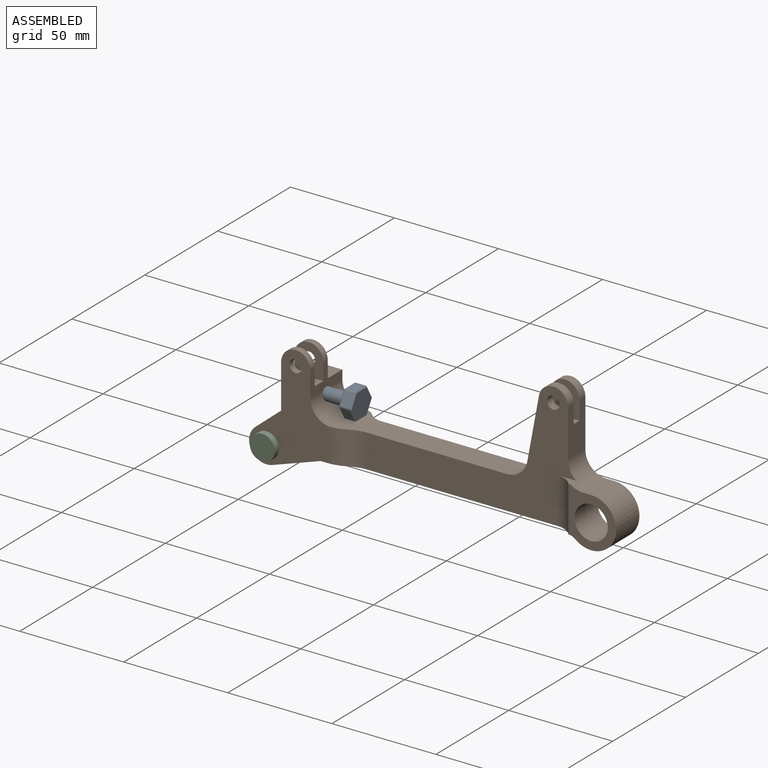
[diagram: assembled view]
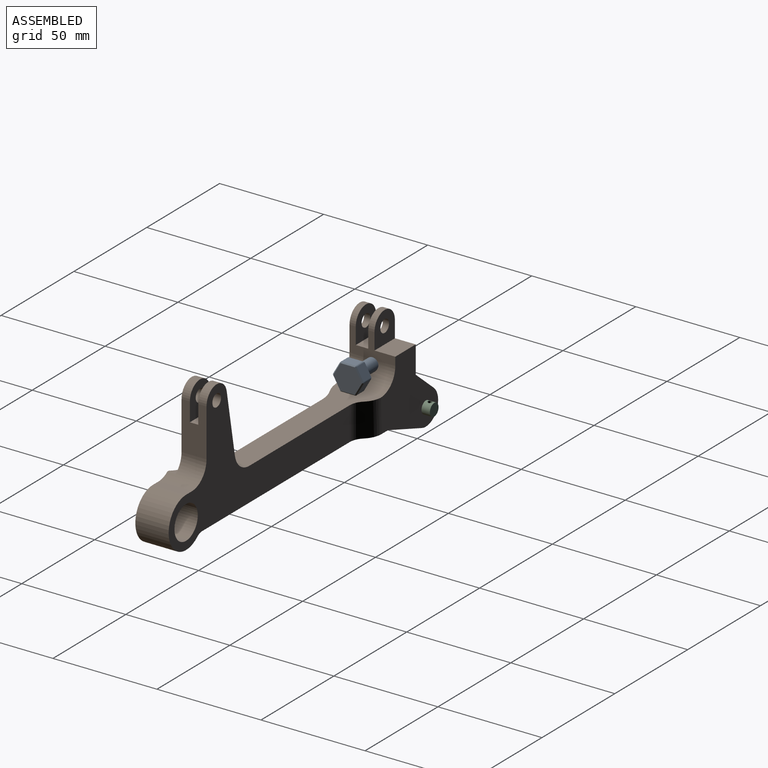
[diagram: assembled view, second angle]
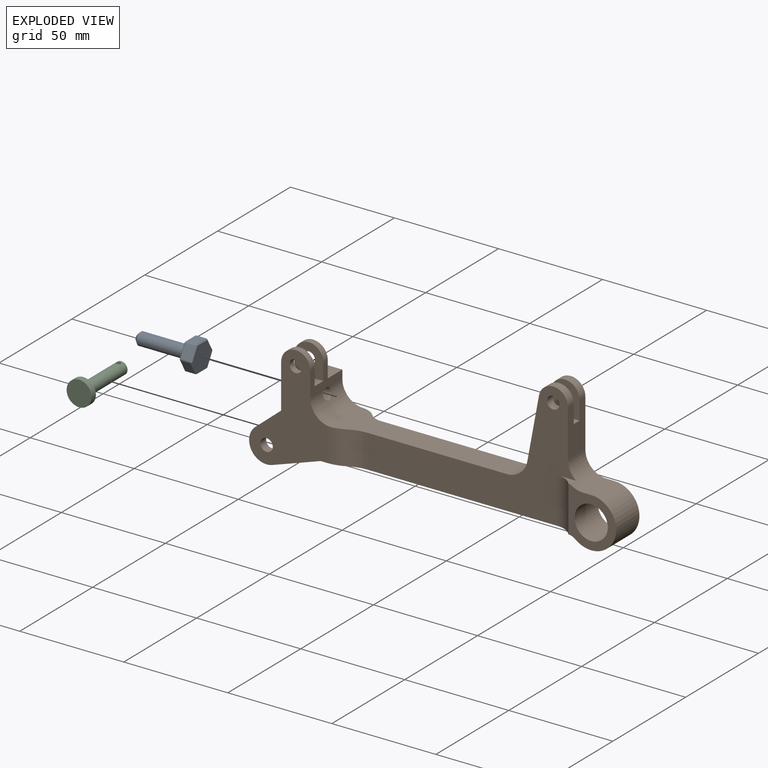
[diagram: exploded view]
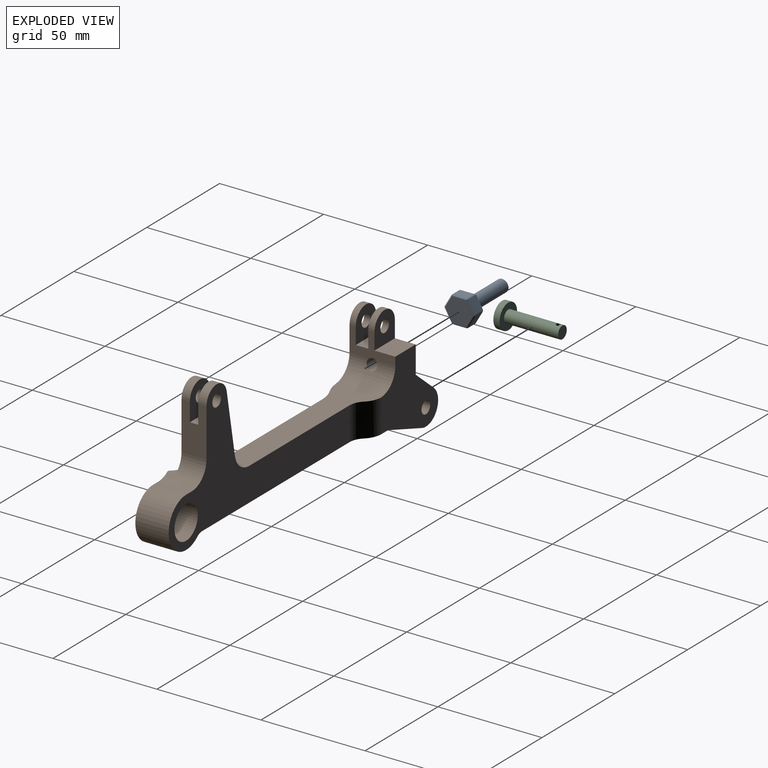
[diagram: exploded view, second angle]
ASSEMBLY  parts=3 mates=2
PART A: 28 faces, bbox 13x31x14.7 mm
  f0: plane 6.35x5mm, normal (-1,0,0), area 31.8mm2, adj f13,f15,f23,f24
  f1: plane 5.5x5mm, normal (-0.5,0,-0.87), area 31.8mm2, adj f11,f17,f22,f23
  f2: plane 5.5x5mm, normal (0.5,0,-0.87), area 31.8mm2, adj f9,f18,f21,f22
  f3: plane 6.35x5mm, normal (1,0,0), area 31.8mm2, adj f8,f16,f20,f21
  f4: plane 5.5x5.5mm, normal (0.5,0,0.87), area 34.9mm2, adj f7,f10,f19,f20
  f5: plane 5.5x5mm, normal (-0.5,0,0.87), area 31.8mm2, adj f12,f14,f19,f24
  f6: plane 13.86x12mm, normal (0,1,0), area 124.7mm2, adj f8,f9,f10,f11,f12,f13
  f7: plane 14.15x12mm, normal (0,-1,0), area 99.8mm2, adj f4,f14,f15,f16,f17,f18,f25
  f8: plane 7.35x0.5mm, normal (0.71,0.71,0), area 5mm2, adj f3,f6,f9,f10,f20,f21
  f9: plane 6.37x3.89mm, normal (0.35,0.71,-0.61), area 5mm2, adj f2,f6,f8,f11,f21,f22
  f10: plane 6.37x3.89mm, normal (0.35,0.71,0.61), area 5mm2, adj f4,f6,f8,f12,f19,f20
  f11: plane 6.37x3.89mm, normal (-0.35,0.71,-0.61), area 5mm2, adj f1,f6,f9,f13,f22,f23
  f12: plane 6.37x3.89mm, normal (-0.35,0.71,0.61), area 5mm2, adj f5,f6,f10,f13,f19,f24
  f13: plane 7.35x0.5mm, normal (-0.71,0.71,0), area 5mm2, adj f0,f6,f11,f12,f23,f24
  f14: plane 6.87x3.89mm, normal (-0.35,-0.71,0.61), area 5.2mm2, adj f5,f7,f15,f19,f24
  f15: plane 7.35x0.5mm, normal (-0.71,-0.71,0), area 5mm2, adj f0,f7,f14,f17,f23,f24
  f16: plane 7.72x0.5mm, normal (0.71,-0.71,0), area 5.2mm2, adj f3,f7,f18,f20,f21
  f17: plane 6.37x3.89mm, normal (-0.35,-0.71,-0.61), area 5mm2, adj f1,f7,f15,f18,f22,f23
  f18: plane 6.37x3.89mm, normal (0.35,-0.71,-0.61), area 5mm2, adj f2,f7,f16,f17,f21,f22
  f19: cylinder r=1mm len=5.63mm, axis (0,-1,0), area 5.5mm2, adj f4,f5,f10,f12,f14
  f20: cylinder r=1mm len=5.63mm, axis (0,-1,0), area 5.5mm2, adj f3,f4,f8,f10,f16
  f21: cylinder r=1mm len=5.27mm, axis (0,-1,0), area 5.3mm2, adj f2,f3,f8,f9,f16,f18
  f22: cylinder r=1mm len=5.27mm, axis (0,-1,0), area 5.3mm2, adj f1,f2,f9,f11,f17,f18
  f23: cylinder r=1mm len=5.27mm, axis (0,-1,0), area 5.3mm2, adj f0,f1,f11,f13,f15,f17
  f24: cylinder r=1mm len=5.27mm, axis (0,-1,0), area 5.3mm2, adj f0,f5,f12,f13,f14,f15
  f25: cylinder r=3mm len=23.5mm, axis (0,1,0), area 443mm2, adj f7,f27
  f26: plane 3x3mm, normal (0,-1,0), area 7.1mm2, adj f27
  f27: cone r=1.5mm half-angle=45deg, axis (0,1,0), area 30mm2, adj f25,f26
PART B: 54 faces, bbox 176.4x22x68.4 mm
  f0: cylinder r=10mm len=16mm, axis (0,-1,0), area 214.2mm2, adj f15,f22,f23,f31,f33,f50
  f1: cylinder r=10mm len=12mm, axis (0,1,0), area 166.4mm2, adj f10,f24,f31,f50
  f2: cylinder r=8.4mm len=14.83mm, axis (0,1,0), area 93.2mm2, adj f5,f18,f27,f44
  f3: cylinder r=3mm len=6mm, axis (0,1,0), area 75.4mm2, adj f28,f46
  f4: plane 12.4x10.4mm, normal (-0.64,0,0.77), area 64.7mm2, adj f17,f19,f28,f46
  f5: plane 23.29x22mm, normal (0.32,0,-0.95), area 252.9mm2, adj f2,f19,f20,f27,f28,f44,f45,f46
  f6: cylinder r=3mm len=6mm, axis (0,1,0), area 75.4mm2, adj f27,f44
  f7: cylinder r=7mm len=14mm, axis (0,1,0), area 66mm2, adj f9,f17,f27,f42
  f8: cylinder r=3mm len=6mm, axis (0,1,0), area 56.5mm2, adj f27,f42
  f9: plane 22x12mm, normal (1,0,0), area 135.1mm2, adj f7,f16,f27,f28,f34,f39,f40,f41
  f10: plane 30.11x12mm, normal (-0.98,0,0.18), area 343mm2, adj f1,f11,f13,f31,f35,f36,f38,f50
  f11: cylinder r=7mm len=13.88mm, axis (0,1,0), area 82.8mm2, adj f10,f23,f35,f50
  f12: cylinder r=3mm len=6mm, axis (0,1,0), area 75.4mm2, adj f35,f50
  f13: cylinder r=7mm len=13.88mm, axis (0,1,0), area 82.8mm2, adj f10,f23,f31,f36
  f14: cylinder r=3mm len=6mm, axis (0,1,0), area 75.4mm2, adj f31,f36
  f15: plane 26x22.94mm, normal (0,-1,0), area 275mm2, adj f0,f21,f22,f25,f29,f33,f51
  f16: cylinder r=7mm len=14mm, axis (0,1,0), area 66mm2, adj f9,f17,f40,f43
  f17: plane 22x21.16mm, normal (-1,0,0), area 316.3mm2, adj f4,f7,f16,f18,f27,f28,f39,f40
  f18: plane 12.4x10.4mm, normal (-0.64,0,0.77), area 64.7mm2, adj f2,f17,f27,f44
  f19: cylinder r=8.4mm len=14.83mm, axis (0,1,0), area 93.2mm2, adj f4,f5,f28,f46
  f20: plane 119.05x22mm, normal (0,0,-1), area 1551.8mm2, adj f5,f27,f28,f29,f30,f31,f32,f47
  f21: cylinder r=12mm len=24mm, axis (0,1,0), area 737.6mm2, adj f15,f22,f50,f51
  f22: plane 16x4mm, normal (0,0,1), area 64mm2, adj f0,f15,f21,f50
  f23: plane 23x12mm, normal (1,0,0), area 240mm2, adj f0,f11,f13,f31,f35,f36,f37,f50
  f24: plane 81.69x21.88mm, normal (0,0,1), area 1043.9mm2, adj f1,f30,f31,f34,f47,f48,f50,f52
  f25: cylinder r=8mm len=16mm, axis (0,1,0), area 804.2mm2, adj f15,f50
  f26: cylinder r=3mm len=6mm, axis (0,1,0), area 56.5mm2, adj f40,f43
  f27: plane 53.4x37.57mm, normal (0,-1,0), area 1032.5mm2, adj f2,f5,f6,f7,f8,f9,f17,f18
  f28: plane 38.73x38.4mm, normal (0,1,0), area 890.5mm2, adj f3,f4,f5,f9,f17,f19,f20,f34
  f29: plane 22x0.43mm, normal (-0.77,-0.64,0), area 12.3mm2, adj f15,f20,f32,f33,f51
  f30: plane 16x0.15mm, normal (0.45,-0.89,0), area 2.7mm2, adj f20,f24,f47,f48
  f31: plane 100.34x60mm, normal (0,-1,0), area 2154.1mm2, adj f0,f1,f10,f13,f14,f20,f23,f24
  f32: cylinder r=10mm len=22mm, axis (0,0,1), area 192mm2, adj f20,f29,f31,f33
  f33: plane 8.96x4mm, normal (0,0,1), area 13.5mm2, adj f0,f15,f29,f31,f32
  f34: cylinder r=10mm len=22mm, axis (0,-1,0), area 324.4mm2, adj f9,f24,f27,f28,f47,f49,f53
  f35: plane 16x15mm, normal (0,-1,0), area 181.7mm2, adj f10,f11,f12,f23,f37,f38
  f36: plane 16x15mm, normal (0,1,0), area 181.7mm2, adj f10,f13,f14,f23,f37,f38
  f37: plane 15x4mm, normal (0,0,1), area 60mm2, adj f23,f35,f36,f38
  f38: plane 4.27x4mm, normal (1,0,0), area 17.1mm2, adj f10,f35,f36,f37
  f39: plane 14x10mm, normal (0,0,1), area 140mm2, adj f9,f17,f28,f40
  f40: plane 15x14mm, normal (0,1,0), area 160.7mm2, adj f9,f16,f17,f26,f39
  f41: plane 14x6mm, normal (0,0,1), area 84mm2, adj f9,f17,f42,f43
  f42: plane 15x14mm, normal (0,1,0), area 160.7mm2, adj f7,f8,f9,f17,f41
  f43: plane 15x14mm, normal (0,-1,0), area 160.7mm2, adj f9,f16,f17,f26,f41
  f44: plane 30.61x25.24mm, normal (0,1,0), area 415.6mm2, adj f2,f5,f6,f18,f45
  f45: plane 18.13x15.21mm, normal (-0.77,0,-0.64), area 331.4mm2, adj f5,f17,f44,f46
  f46: plane 30.61x25.24mm, normal (0,-1,0), area 415.6mm2, adj f3,f4,f5,f19,f45
  f47: cylinder r=18mm len=16.17mm, axis (0,0,1), area 135.8mm2, adj f20,f24,f27,f30,f34
  f48: cylinder r=18mm len=16mm, axis (0,0,1), area 135.7mm2, adj f20,f24,f30,f31
  f49: cylinder r=2.6mm len=15.21mm, axis (-1,0,0), area 235.6mm2, adj f9,f17,f34
  f50: plane 124.25x64mm, normal (0,1,0), area 2636.1mm2, adj f0,f1,f10,f11,f12,f20,f21,f22
  f51: cylinder r=5mm len=16mm, axis (0,1,0), area 56mm2, adj f15,f20,f21,f29,f50
  f52: cylinder r=8mm len=16mm, axis (0,0,-1), area 107.7mm2, adj f20,f24,f50,f53
  f53: cylinder r=10mm len=16.02mm, axis (0,0,-1), area 134.6mm2, adj f20,f24,f28,f34,f52
PART C: 6 faces, bbox 12x12x29 mm
  f0: plane 12x12mm, normal (0,0,1), area 113.1mm2, adj f1
  f1: cylinder r=6mm len=12mm, axis (0,0,1), area 113.1mm2, adj f0,f2
  f2: plane 12x12mm, normal (0,0,-1), area 85.3mm2, adj f1,f3
  f3: cylinder r=2.98mm len=26mm, axis (0,0,1), area 479.6mm2, adj f2,f4,f5
  f4: plane 5.95x5.95mm, normal (0,0,-1), area 27.8mm2, adj f3
  f5: cylinder r=1mm len=5.95mm, axis (0,-1,0), area 36.3mm2, adj f3
PLACE A rot(axis=(-0.58,-0.58,-0.58),120deg) t=(-124,-10.99,15.84)mm
PLACE B at identity
PLACE C rot(axis=(1,0,0),90deg) t=(-156,4,-8)mm
MATE fastened C.f1 <-> B.f2  axis (0,1,0) through (-156,-22,-8)mm
MATE fastened A.f25 <-> B.f49  axis (-1,0,0) through (-149,-10.99,15.84)mm
